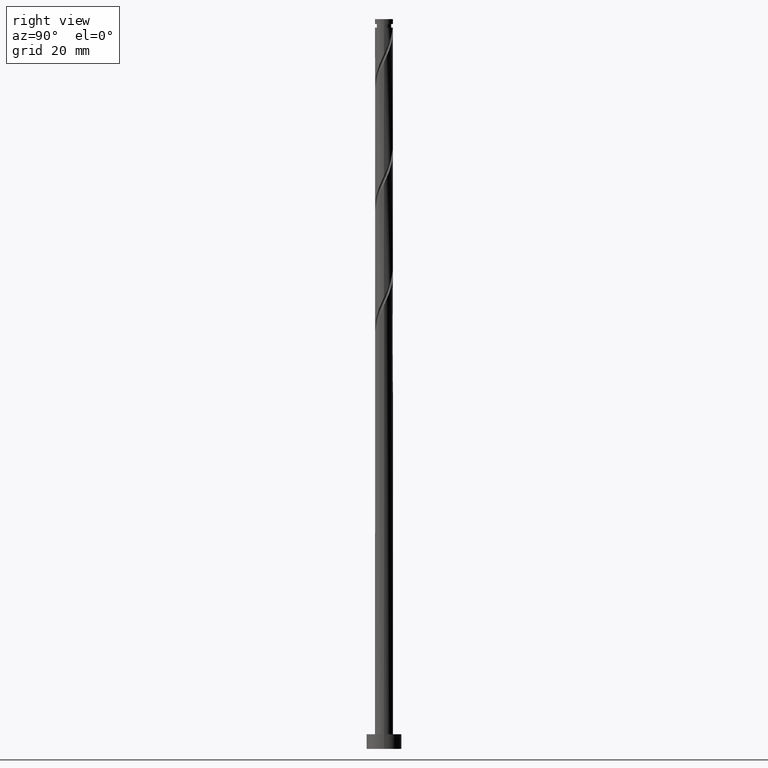
[diagram: clean part render]
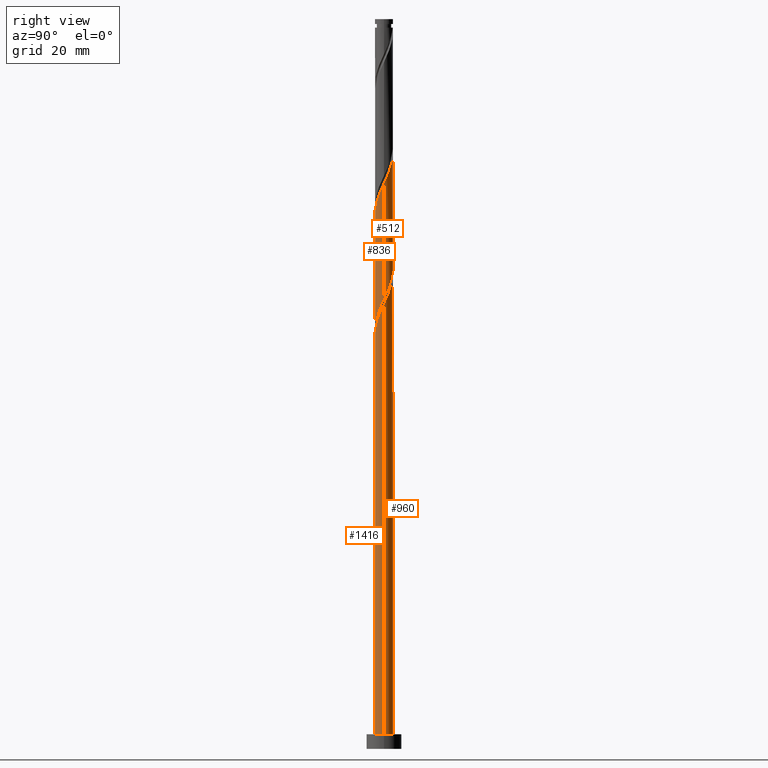
[diagram: same view with one multi-face feature highlighted, each face labeled with its STEP entity id]
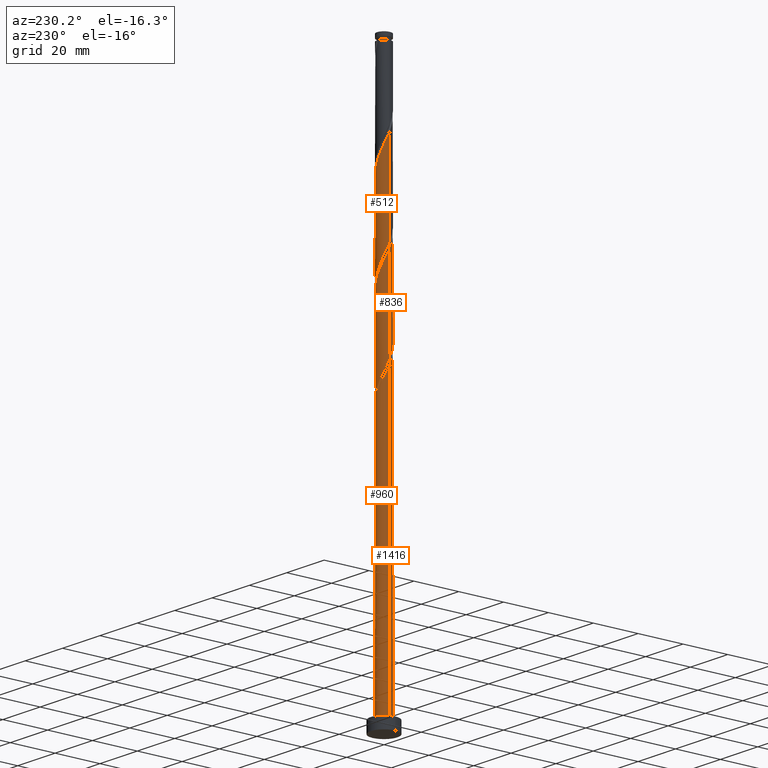
[diagram: same view with one multi-face feature highlighted, each face labeled with its STEP entity id]
A machine part, right view. The highlighted faces form ONE feature: a constant-radius fillet chain: 4 tangent blend faces with common blend radius 3.1 mm. The faces share edges in the B-rep.
A second angle (auxiliary view) of the same feature is appended — it is thin or edge-on in the first view.
Their STEP definitions:
[1] entity #512 (Cylinder):
#1 = CARTESIAN_POINT ( 'NONE',  ( -3.099999999999999645, -5.384137871983187194E-15, 175.5070562873882523 ) ) ;
#11 = CARTESIAN_POINT ( 'NONE',  ( 1.958059922082858728, 2.403331300826598405, 160.5573395397014735 ) ) ;
#12 = LINE ( 'NONE', #591, #320 ) ;
#35 = CARTESIAN_POINT ( 'NONE',  ( 3.099999999999999645, 4.112883096653824920E-15, 154.6737229540549379 ) ) ;
#100 = CARTESIAN_POINT ( 'NONE',  ( 2.621826352477054645, 1.654093884112052937, 197.4163138986758383 ) ) ;
#104 = CARTESIAN_POINT ( 'NONE',  ( -3.100000000000004974, -3.365086169989463498E-15, 214.5178792022711320 ) ) ;
#109 = CARTESIAN_POINT ( 'NONE',  ( 2.822669712321752122, 1.335746528729902183, 196.6150318473937659 ) ) ;
#119 = CARTESIAN_POINT ( 'NONE',  ( -2.998562407077148162, 0.8719556093840096223, 212.6406728730348163 ) ) ;
#124 = ORIENTED_EDGE ( 'NONE', *, *, #1775, .F. ) ;
#137 = CARTESIAN_POINT ( 'NONE',  ( 0.9857721960353355017, 2.963095724305272238, 162.9611856935476339 ) ) ;
#147 = CARTESIAN_POINT ( 'NONE',  ( -1.878597541326290532, 2.494504834951285055, 169.3714421038040712 ) ) ;
#157 = CARTESIAN_POINT ( 'NONE',  ( 2.850659702190533995, 1.218088363915759365, 157.3522113345732691 ) ) ;
#168 = CARTESIAN_POINT ( 'NONE',  ( -3.100000000000000089, 0.1232967040439751222, 175.2428853717553068 ) ) ;
#177 = CARTESIAN_POINT ( 'NONE',  ( 3.100000000000000533, 0.2518949594648384749, 155.2134236914032499 ) ) ;
#179 = DIRECTION ( 'NONE',  ( -0.000000000000000000, -0.000000000000000000, -1.000000000000000000 ) ) ;
#182 = ORIENTED_EDGE ( 'NONE', *, *, #1736, .F. ) ;
#242 = CARTESIAN_POINT ( 'NONE',  ( 1.552816185334434218, 2.683050855754219199, 200.6214421038040996 ) ) ;
#243 =( BOUNDED_CURVE ( )  B_SPLINE_CURVE ( 2, ( #1, #168, #562, #1536, #600, #307, #878, #1426, #286, #147, #859, #732, #1123, #1258, #568, #1698, #1574, #137, #1156, #1525, #11, #1147, #453, #1549, #157, #443, #296, #177, #35 ),
 .UNSPECIFIED., .F., .T. ) 
 B_SPLINE_CURVE_WITH_KNOTS ( ( 3, 2, 2, 2, 2, 2, 2, 2, 2, 2, 2, 2, 2, 2, 3 ),
 ( 0.6795271625973831053, 0.6826923076923077094, 0.6923076923076922906, 0.7019230769230768718, 0.7115384615384615641, 0.7211538461538461453, 0.7307692307692307265, 0.7403846153846154188, 0.7500000000000000000, 0.7596153846153845812, 0.7692307692307692735, 0.7788461538461538547, 0.7884615384615384359, 0.7980769230769231282, 0.8045271625973833274 ),
 .UNSPECIFIED. ) 
 CURVE ( )  GEOMETRIC_REPRESENTATION_ITEM ( )  RATIONAL_B_SPLINE_CURVE ( ( 0.9061636035682862911, 0.9069090390690748293, 0.9090909090909315982, 0.9024626128164350281, 0.9090909090909315982, 0.9024626128164350281, 0.9090909090909315982, 0.9024626128164350281, 0.9090909090909315982, 0.9024626128164350281, 0.9090909090909315982, 0.9024626128164350281, 0.9090909090909315982, 0.9024626128164350281, 0.9090909090909315982, 0.9024626128164350281, 0.9090909090909315982, 0.9024626128164350281, 0.9090909090909315982, 0.9024626128164350281, 0.9090909090909315982, 0.9024626128164350281, 0.9090909090909315982, 0.9024626128164350281, 0.9090909090909315982, 0.9024626128164350281, 0.9090909090909315982, 0.9046444828382915748, 0.9061636035682864021 ) ) 
 REPRESENTATION_ITEM ( '' )  );
#256 = CARTESIAN_POINT ( 'NONE',  ( -1.666242669196358106, 2.641082819833930007, 207.8329805653424671 ) ) ;
#286 = CARTESIAN_POINT ( 'NONE',  ( -2.149790266979321185, 2.233473037222740931, 170.1727241550860583 ) ) ;
#296 = CARTESIAN_POINT ( 'NONE',  ( 3.059332338079530089, 0.5004854095583954887, 155.7496472320091812 ) ) ;
#300 = CARTESIAN_POINT ( 'NONE',  ( 3.099999999999999645, 4.112883096653824131E-15, 154.6737229540549379 ) ) ;
#307 = CARTESIAN_POINT ( 'NONE',  ( -2.822669712321746793, 1.335746528729902183, 172.5765703089323040 ) ) ;
#320 = VECTOR ( 'NONE', #179, 1000.000000000000000 ) ;
#370 =( BOUNDED_CURVE ( )  B_SPLINE_CURVE ( 2, ( #1805, #1069, #823, #397, #940, #109, #100, #1227, #542, #666, #242, #949, #1361, #408, #377, #1514, #1794, #932, #675, #256, #1082, #799, #655, #1370, #1342, #119, #1235, #1210, #550 ),
 .UNSPECIFIED., .F., .T. ) 
 B_SPLINE_CURVE_WITH_KNOTS ( ( 3, 2, 2, 2, 2, 2, 2, 2, 2, 2, 2, 2, 2, 2, 3 ),
 ( 0.4295271625973836049, 0.4326923076923077094, 0.4423076923076922906, 0.4519230769230768718, 0.4615384615384615641, 0.4711538461538461453, 0.4807692307692307265, 0.4903846153846154188, 0.5000000000000000000, 0.5096153846153845812, 0.5192307692307691624, 0.5288461538461538547, 0.5384615384615384359, 0.5480769230769231282, 0.5545271625973833274 ),
 .UNSPECIFIED. ) 
 CURVE ( )  GEOMETRIC_REPRESENTATION_ITEM ( )  RATIONAL_B_SPLINE_CURVE ( ( 0.9061636035682940626, 0.9069090390690828229, 0.9090909090909391477, 0.9024626128164425776, 0.9090909090909391477, 0.9024626128164425776, 0.9090909090909391477, 0.9024626128164425776, 0.9090909090909391477, 0.9024626128164425776, 0.9090909090909391477, 0.9024626128164425776, 0.9090909090909391477, 0.9024626128164425776, 0.9090909090909391477, 0.9024626128164425776, 0.9090909090909391477, 0.9024626128164425776, 0.9090909090909391477, 0.9024626128164425776, 0.9090909090909391477, 0.9024626128164425776, 0.9090909090909391477, 0.9024626128164425776, 0.9090909090909391477, 0.9024626128164425776, 0.9090909090909391477, 0.9046444828382991243, 0.9061636035682938406 ) ) 
 REPRESENTATION_ITEM ( '' )  );
#377 = CARTESIAN_POINT ( 'NONE',  ( 0.1280745435953598022, 3.097353210611097918, 203.8265703089322187 ) ) ;
#392 = EDGE_CURVE ( 'NONE', #1037, #1555, #370, .T. ) ;
#397 = CARTESIAN_POINT ( 'NONE',  ( 3.060313128317948994, 0.6214230849569025716, 195.0124677448297348 ) ) ;
#408 = CARTESIAN_POINT ( 'NONE',  ( 0.5041613131675937165, 3.081802145527464010, 203.0252882576502316 ) ) ;
#443 = CARTESIAN_POINT ( 'NONE',  ( 2.998562407077144609, 0.8719556093840056255, 156.5509292832912820 ) ) ;
#453 = CARTESIAN_POINT ( 'NONE',  ( 2.476317086136641699, 1.864900450133392784, 158.9547754371374140 ) ) ;
#500 = EDGE_LOOP ( 'NONE', ( #1418, #1440, #124, #182 ) ) ;
#512 = ADVANCED_FACE ( 'NONE', ( #611 ), #1294, .T. ) ;
#542 = CARTESIAN_POINT ( 'NONE',  ( 2.149790266979326070, 2.233473037222744040, 199.0188780012399832 ) ) ;
#550 = CARTESIAN_POINT ( 'NONE',  ( -3.100000000000004974, -3.365086169989463498E-15, 214.5178792022711320 ) ) ;
#562 = CARTESIAN_POINT ( 'NONE',  ( -3.090207698699929395, 0.2462039376120597756, 174.9804164627784360 ) ) ;
#568 = CARTESIAN_POINT ( 'NONE',  ( -0.1280745435953560274, 3.097353210611092145, 165.3650318473938228 ) ) ;
#591 = CARTESIAN_POINT ( 'NONE',  ( 3.100000000000000089, 3.796405077356794918E-16, 250.0000000000000000 ) ) ;
#600 = CARTESIAN_POINT ( 'NONE',  ( -2.941491420319844785, 0.9785848068434026548, 173.3778523602142911 ) ) ;
#611 = FACE_OUTER_BOUND ( 'NONE', #500, .T. ) ;
#655 = CARTESIAN_POINT ( 'NONE',  ( -2.476317086136644807, 1.864900450133398113, 210.2368267191886559 ) ) ;
#658 = EDGE_CURVE ( 'NONE', #1037, #1275, #12, .T. ) ;
#666 = CARTESIAN_POINT ( 'NONE',  ( 1.878597541326295861, 2.494504834951285943, 199.8201600525219988 ) ) ;
#675 = CARTESIAN_POINT ( 'NONE',  ( -1.326007432615846193, 2.802089272069603343, 207.0316985140604515 ) ) ;
#732 = CARTESIAN_POINT ( 'NONE',  ( -1.227034829342569688, 2.871596876557147127, 167.7688780012399548 ) ) ;
#799 = CARTESIAN_POINT ( 'NONE',  ( -2.249877174969360460, 2.165579781819277905, 209.4355446679065835 ) ) ;
#823 = CARTESIAN_POINT ( 'NONE',  ( 3.090207698699935612, 0.2462039376120576106, 194.2111856935476339 ) ) ;
#858 = VERTEX_POINT ( 'NONE', #1200 ) ;
#859 = CARTESIAN_POINT ( 'NONE',  ( -1.552816185334429777, 2.683050855754215203, 168.5701600525220272 ) ) ;
#878 = CARTESIAN_POINT ( 'NONE',  ( -2.621826352477049316, 1.654093884112051160, 171.7752882576502031 ) ) ;
#932 = CARTESIAN_POINT ( 'NONE',  ( -0.9857721960353346136, 2.963095724305278011, 206.2304164627784075 ) ) ;
#940 = CARTESIAN_POINT ( 'NONE',  ( 2.941491420319851446, 0.9785848068434013225, 195.8137497961117504 ) ) ;
#949 = CARTESIAN_POINT ( 'NONE',  ( 1.227034829342573241, 2.871596876557151123, 201.4227241550860867 ) ) ;
#973 = LINE ( 'NONE', #1111, #1782 ) ;
#1037 = VERTEX_POINT ( 'NONE', #1359 ) ;
#1069 = CARTESIAN_POINT ( 'NONE',  ( 3.100000000000004086, 0.1232967040439928164, 193.9487167845707916 ) ) ;
#1082 = CARTESIAN_POINT ( 'NONE',  ( -1.958059922082859172, 2.403331300826604178, 208.6342626166245680 ) ) ;
#1111 = CARTESIAN_POINT ( 'NONE',  ( -3.100000000000000089, 0.000000000000000000, 250.0000000000000000 ) ) ;
#1123 = CARTESIAN_POINT ( 'NONE',  ( -0.8655980712550804812, 2.976699511042302237, 166.9675959499578823 ) ) ;
#1147 = CARTESIAN_POINT ( 'NONE',  ( 2.249877174969357796, 2.165579781819274352, 159.7560574884194295 ) ) ;
#1156 = CARTESIAN_POINT ( 'NONE',  ( 1.326007432615846859, 2.802089272069597570, 162.1599036422656184 ) ) ;
#1200 = CARTESIAN_POINT ( 'NONE',  ( -3.099999999999999645, -5.384137871983187194E-15, 175.5070562873882523 ) ) ;
#1210 = CARTESIAN_POINT ( 'NONE',  ( -3.100000000000004974, 0.2518949594648407508, 213.9781784649228200 ) ) ;
#1227 = CARTESIAN_POINT ( 'NONE',  ( 2.420982992632358055, 1.972441239494200138, 198.2175959499579108 ) ) ;
#1235 = CARTESIAN_POINT ( 'NONE',  ( -3.059332338079534530, 0.5004854095583979312, 213.4419549243168888 ) ) ;
#1258 = CARTESIAN_POINT ( 'NONE',  ( -0.5041613131675906079, 3.081802145527458681, 166.1663138986758099 ) ) ;
#1275 = VERTEX_POINT ( 'NONE', #300 ) ;
#1294 = CYLINDRICAL_SURFACE ( 'NONE', #1323, 3.100000000000000089 ) ;
#1323 = AXIS2_PLACEMENT_3D ( 'NONE', #1435, #1721, #1575 ) ;
#1342 = CARTESIAN_POINT ( 'NONE',  ( -2.850659702190538436, 1.218088363915763805, 211.8393908217527155 ) ) ;
#1359 = CARTESIAN_POINT ( 'NONE',  ( 3.100000000000005418, 1.600285423061656395E-15, 193.6845458689378177 ) ) ;
#1361 = CARTESIAN_POINT ( 'NONE',  ( 0.8655980712550847000, 2.976699511042306234, 202.2240062063681876 ) ) ;
#1370 = CARTESIAN_POINT ( 'NONE',  ( -2.702756997303928266, 1.564221118447517433, 211.0381087704706999 ) ) ;
#1418 = ORIENTED_EDGE ( 'NONE', *, *, #392, .F. ) ;
#1426 = CARTESIAN_POINT ( 'NONE',  ( -2.420982992632351838, 1.972441239494199250, 170.9740062063681592 ) ) ;
#1435 = CARTESIAN_POINT ( 'NONE',  ( 0.000000000000000000, 0.000000000000000000, 250.0000000000000000 ) ) ;
#1440 = ORIENTED_EDGE ( 'NONE', *, *, #658, .T. ) ;
#1514 = CARTESIAN_POINT ( 'NONE',  ( -0.2480122259768767212, 3.112904275694731826, 204.6278523602143196 ) ) ;
#1525 = CARTESIAN_POINT ( 'NONE',  ( 1.666242669196356996, 2.641082819833925122, 161.3586215909834891 ) ) ;
#1536 = CARTESIAN_POINT ( 'NONE',  ( -3.060313128317944109, 0.6214230849569030157, 174.1791344114963636 ) ) ;
#1549 = CARTESIAN_POINT ( 'NONE',  ( 2.702756997303925157, 1.564221118447511216, 158.1534933858553984 ) ) ;
#1555 = VERTEX_POINT ( 'NONE', #104 ) ;
#1574 = CARTESIAN_POINT ( 'NONE',  ( 0.6168922110061069164, 3.037999999999998924, 163.7624677448297064 ) ) ;
#1575 = DIRECTION ( 'NONE',  ( -1.000000000000000000, 0.000000000000000000, 0.000000000000000000 ) ) ;
#1685 = DIRECTION ( 'NONE',  ( -0.000000000000000000, -0.000000000000000000, -1.000000000000000000 ) ) ;
#1698 = CARTESIAN_POINT ( 'NONE',  ( 0.2480122259768786641, 3.112904275694726053, 164.5637497961117504 ) ) ;
#1721 = DIRECTION ( 'NONE',  ( -0.000000000000000000, -0.000000000000000000, -1.000000000000000000 ) ) ;
#1736 = EDGE_CURVE ( 'NONE', #1555, #858, #973, .T. ) ;
#1775 = EDGE_CURVE ( 'NONE', #858, #1275, #243, .T. ) ;
#1782 = VECTOR ( 'NONE', #1685, 1000.000000000000000 ) ;
#1794 = CARTESIAN_POINT ( 'NONE',  ( -0.6168922110061059172, 3.038000000000004697, 205.4291344114963920 ) ) ;
#1805 = CARTESIAN_POINT ( 'NONE',  ( 3.100000000000005418, 1.600285423061656395E-15, 193.6845458689378177 ) ) ;
[2] entity #836 (Cylinder):
#12 = LINE ( 'NONE', #591, #320 ) ;
#15 = CARTESIAN_POINT ( 'NONE',  ( -3.100000000000001865, -0.2518949594648305368, 134.3800903580698787 ) ) ;
#97 = CARTESIAN_POINT ( 'NONE',  ( 3.059332338079534974, -0.5004854095583980422, 192.6086215909835175 ) ) ;
#106 = CARTESIAN_POINT ( 'NONE',  ( 0.9857721960353340585, -2.963095724305278011, 185.3970831294450363 ) ) ;
#107 = CARTESIAN_POINT ( 'NONE',  ( -3.099999999999999201, 3.260394600256485574E-15, 133.8403896207215382 ) ) ;
#116 = CARTESIAN_POINT ( 'NONE',  ( -0.8655980712550831457, -2.976699511042307567, 181.3906728730347595 ) ) ;
#117 = CARTESIAN_POINT ( 'NONE',  ( 0.1280745435953551115, -3.097353210611092145, 144.5316985140604231 ) ) ;
#130 = CARTESIAN_POINT ( 'NONE',  ( 1.878597541326289866, -2.494504834951285499, 148.5381087704707568 ) ) ;
#140 = CARTESIAN_POINT ( 'NONE',  ( -1.552816185334434218, -2.683050855754219199, 179.7881087704707568 ) ) ;
#141 = CARTESIAN_POINT ( 'NONE',  ( 3.099999999999999645, -0.1232967040439853640, 154.4095520384219640 ) ) ;
#151 = CARTESIAN_POINT ( 'NONE',  ( -1.878597541326294751, -2.494504834951287275, 178.9868267191886559 ) ) ;
#159 = LINE ( 'NONE', #1015, #1506 ) ;
#179 = DIRECTION ( 'NONE',  ( -0.000000000000000000, -0.000000000000000000, -1.000000000000000000 ) ) ;
#208 = VERTEX_POINT ( 'NONE', #1407 ) ;
#247 = CARTESIAN_POINT ( 'NONE',  ( -0.1280745435953581091, -3.097353210611097918, 182.9932369755989328 ) ) ;
#248 = CARTESIAN_POINT ( 'NONE',  ( 3.060313128317944109, -0.6214230849569032378, 153.3458010781630492 ) ) ;
#271 = CARTESIAN_POINT ( 'NONE',  ( 3.099999999999999645, 4.112883096653824920E-15, 154.6737229540549379 ) ) ;
#300 = CARTESIAN_POINT ( 'NONE',  ( 3.099999999999999645, 4.112883096653824131E-15, 154.6737229540549379 ) ) ;
#311 = CARTESIAN_POINT ( 'NONE',  ( -3.100000000000005862, -0.1232967040439782586, 173.1153834512374203 ) ) ;
#320 = VECTOR ( 'NONE', #179, 1000.000000000000000 ) ;
#335 = CARTESIAN_POINT ( 'NONE',  ( 3.100000000000005418, 1.600285423061656395E-15, 193.6845458689378177 ) ) ;
#339 = CYLINDRICAL_SURFACE ( 'NONE', #374, 3.100000000000000089 ) ;
#374 = AXIS2_PLACEMENT_3D ( 'NONE', #1602, #1321, #1607 ) ;
#383 = CARTESIAN_POINT ( 'NONE',  ( 3.090207698699929395, -0.2462039376120615797, 154.1470831294450932 ) ) ;
#393 = CARTESIAN_POINT ( 'NONE',  ( 1.552816185334429333, -2.683050855754215647, 147.7368267191886844 ) ) ;
#415 = CARTESIAN_POINT ( 'NONE',  ( 2.476317086136644807, -1.864900450133398335, 189.4034933858553131 ) ) ;
#427 = CARTESIAN_POINT ( 'NONE',  ( -2.149790266979325626, -2.233473037222744484, 178.1855446679065551 ) ) ;
#428 = CARTESIAN_POINT ( 'NONE',  ( 2.149790266979321185, -2.233473037222740931, 149.3393908217527724 ) ) ;
#457 = EDGE_CURVE ( 'NONE', #208, #1037, #1804, .T. ) ;
#465 = CARTESIAN_POINT ( 'NONE',  ( -2.420982992632356723, -1.972441239494201470, 177.3842626166245680 ) ) ;
#473 = CARTESIAN_POINT ( 'NONE',  ( -3.099999999999999201, 3.260394600256485574E-15, 133.8403896207215382 ) ) ;
#525 = CARTESIAN_POINT ( 'NONE',  ( -1.958059922082856952, -2.403331300826598849, 139.7240062063682160 ) ) ;
#532 = CARTESIAN_POINT ( 'NONE',  ( -0.2480122259768793302, -3.112904275694726053, 143.7304164627784360 ) ) ;
#548 = CARTESIAN_POINT ( 'NONE',  ( 1.326007432615845305, -2.802089272069604231, 186.1983651807271087 ) ) ;
#549 = CARTESIAN_POINT ( 'NONE',  ( -2.702756997303925157, -1.564221118447513215, 137.3201600525220272 ) ) ;
#557 = CARTESIAN_POINT ( 'NONE',  ( -2.850659702190533551, -1.218088363915760253, 136.5188780012399548 ) ) ;
#591 = CARTESIAN_POINT ( 'NONE',  ( 3.100000000000000089, 3.796405077356794918E-16, 250.0000000000000000 ) ) ;
#652 = CARTESIAN_POINT ( 'NONE',  ( 2.249877174969360460, -2.165579781819279237, 188.6022113345732691 ) ) ;
#658 = EDGE_CURVE ( 'NONE', #1037, #1275, #12, .T. ) ;
#692 = CARTESIAN_POINT ( 'NONE',  ( -2.249877174969357796, -2.165579781819274352, 138.9227241550862004 ) ) ;
#701 = CARTESIAN_POINT ( 'NONE',  ( -2.621826352477054645, -1.654093884112052271, 176.5829805653425524 ) ) ;
#702 = CARTESIAN_POINT ( 'NONE',  ( -1.666242669196356552, -2.641082819833925566, 140.5252882576502031 ) ) ;
#734 = CARTESIAN_POINT ( 'NONE',  ( -2.822669712321751234, -1.335746528729903071, 175.7816985140604800 ) ) ;
#769 = FACE_OUTER_BOUND ( 'NONE', #1682, .T. ) ;
#802 =( BOUNDED_CURVE ( )  B_SPLINE_CURVE ( 2, ( #271, #141, #383, #248, #831, #1244, #1379, #1647, #428, #130, #393, #1348, #806, #1791, #117, #532, #1234, #1815, #1802, #702, #525, #692, #1823, #549, #557, #1783, #1068, #15, #473 ),
 .UNSPECIFIED., .F., .T. ) 
 B_SPLINE_CURVE_WITH_KNOTS ( ( 3, 2, 2, 2, 2, 2, 2, 2, 2, 2, 2, 2, 2, 2, 3 ),
 ( 0.8045271625973833274, 0.8076923076923077094, 0.8173076923076922906, 0.8269230769230768718, 0.8365384615384615641, 0.8461538461538461453, 0.8557692307692307265, 0.8653846153846154188, 0.8750000000000000000, 0.8846153846153845812, 0.8942307692307692735, 0.9038461538461538547, 0.9134615384615384359, 0.9230769230769231282, 0.9295271625973835494 ),
 .UNSPECIFIED. ) 
 CURVE ( )  GEOMETRIC_REPRESENTATION_ITEM ( )  RATIONAL_B_SPLINE_CURVE ( ( 0.9061636035682864021, 0.9069090390690750514, 0.9090909090909315982, 0.9024626128164350281, 0.9090909090909315982, 0.9024626128164350281, 0.9090909090909315982, 0.9024626128164350281, 0.9090909090909315982, 0.9024626128164350281, 0.9090909090909315982, 0.9024626128164350281, 0.9090909090909315982, 0.9024626128164350281, 0.9090909090909315982, 0.9024626128164350281, 0.9090909090909315982, 0.9024626128164350281, 0.9090909090909315982, 0.9024626128164350281, 0.9090909090909315982, 0.9024626128164350281, 0.9090909090909315982, 0.9024626128164350281, 0.9090909090909315982, 0.9024626128164350281, 0.9090909090909315982, 0.9046444828382913528, 0.9061636035682865131 ) ) 
 REPRESENTATION_ITEM ( '' )  );
#805 = CARTESIAN_POINT ( 'NONE',  ( 2.850659702190538436, -1.218088363915763805, 191.0060574884194580 ) ) ;
#806 = CARTESIAN_POINT ( 'NONE',  ( 0.8655980712550801481, -2.976699511042302237, 146.1342626166245964 ) ) ;
#831 = CARTESIAN_POINT ( 'NONE',  ( 2.941491420319844341, -0.9785848068434037650, 152.5445190268809483 ) ) ;
#836 = ADVANCED_FACE ( 'NONE', ( #769 ), #339, .T. ) ;
#929 = CARTESIAN_POINT ( 'NONE',  ( 1.666242669196356774, -2.641082819833930451, 186.9996472320091812 ) ) ;
#1015 = CARTESIAN_POINT ( 'NONE',  ( -3.100000000000000089, 0.000000000000000000, 250.0000000000000000 ) ) ;
#1037 = VERTEX_POINT ( 'NONE', #1359 ) ;
#1068 = CARTESIAN_POINT ( 'NONE',  ( -3.059332338079530089, -0.5004854095583951556, 134.9163138986758668 ) ) ;
#1119 = ORIENTED_EDGE ( 'NONE', *, *, #1289, .T. ) ;
#1152 = VERTEX_POINT ( 'NONE', #107 ) ;
#1171 = EDGE_CURVE ( 'NONE', #1275, #1152, #802, .T. ) ;
#1218 = CARTESIAN_POINT ( 'NONE',  ( 3.100000000000007194, -0.2518949594648298707, 193.1448451315895056 ) ) ;
#1232 = CARTESIAN_POINT ( 'NONE',  ( -0.5041613131675932724, -3.081802145527462677, 182.1919549243168603 ) ) ;
#1234 = CARTESIAN_POINT ( 'NONE',  ( -0.6168922110061065833, -3.037999999999998924, 142.9291344114963636 ) ) ;
#1244 = CARTESIAN_POINT ( 'NONE',  ( 2.822669712321746793, -1.335746528729901739, 151.7432369755988759 ) ) ;
#1275 = VERTEX_POINT ( 'NONE', #300 ) ;
#1289 = EDGE_CURVE ( 'NONE', #208, #1152, #159, .T. ) ;
#1321 = DIRECTION ( 'NONE',  ( -0.000000000000000000, -0.000000000000000000, -1.000000000000000000 ) ) ;
#1339 = CARTESIAN_POINT ( 'NONE',  ( 2.702756997303928266, -1.564221118447518100, 190.2047754371373571 ) ) ;
#1347 = CARTESIAN_POINT ( 'NONE',  ( 2.998562407077147274, -0.8719556093840112876, 191.8073395397014451 ) ) ;
#1348 = CARTESIAN_POINT ( 'NONE',  ( 1.227034829342569244, -2.871596876557147571, 146.9355446679066404 ) ) ;
#1358 = CARTESIAN_POINT ( 'NONE',  ( 0.6168922110061061392, -3.038000000000004697, 184.5958010781630492 ) ) ;
#1359 = CARTESIAN_POINT ( 'NONE',  ( 3.100000000000005418, 1.600285423061656395E-15, 193.6845458689378177 ) ) ;
#1379 = CARTESIAN_POINT ( 'NONE',  ( 2.621826352477048871, -1.654093884112051382, 150.9419549243168888 ) ) ;
#1407 = CARTESIAN_POINT ( 'NONE',  ( -3.100000000000005418, 6.715216401445643760E-15, 172.8512125356044749 ) ) ;
#1413 = ORIENTED_EDGE ( 'NONE', *, *, #658, .F. ) ;
#1490 = CARTESIAN_POINT ( 'NONE',  ( -1.227034829342573019, -2.871596876557151123, 180.5893908217527439 ) ) ;
#1506 = VECTOR ( 'NONE', #1563, 1000.000000000000000 ) ;
#1550 = CARTESIAN_POINT ( 'NONE',  ( -3.100000000000005418, 6.715216401445643760E-15, 172.8512125356044749 ) ) ;
#1563 = DIRECTION ( 'NONE',  ( -0.000000000000000000, -0.000000000000000000, -1.000000000000000000 ) ) ;
#1571 = ORIENTED_EDGE ( 'NONE', *, *, #457, .F. ) ;
#1602 = CARTESIAN_POINT ( 'NONE',  ( 0.000000000000000000, 0.000000000000000000, 250.0000000000000000 ) ) ;
#1607 = DIRECTION ( 'NONE',  ( -1.000000000000000000, 0.000000000000000000, 0.000000000000000000 ) ) ;
#1626 = CARTESIAN_POINT ( 'NONE',  ( 0.2480122259768770543, -3.112904275694731826, 183.7945190268809483 ) ) ;
#1647 = CARTESIAN_POINT ( 'NONE',  ( 2.420982992632351394, -1.972441239494201248, 150.1406728730348163 ) ) ;
#1665 = CARTESIAN_POINT ( 'NONE',  ( 1.958059922082859172, -2.403331300826604178, 187.8009292832912536 ) ) ;
#1682 = EDGE_LOOP ( 'NONE', ( #1413, #1571, #1119, #1832 ) ) ;
#1688 = CARTESIAN_POINT ( 'NONE',  ( -3.060313128317948994, -0.6214230849569027937, 174.1791344114963920 ) ) ;
#1713 = CARTESIAN_POINT ( 'NONE',  ( -2.941491420319850114, -0.9785848068434026548, 174.9804164627784075 ) ) ;
#1783 = CARTESIAN_POINT ( 'NONE',  ( -2.998562407077144165, -0.8719556093840072908, 135.7175959499579392 ) ) ;
#1791 = CARTESIAN_POINT ( 'NONE',  ( 0.5041613131675897197, -3.081802145527458237, 145.3329805653424955 ) ) ;
#1802 = CARTESIAN_POINT ( 'NONE',  ( -1.326007432615845527, -2.802089272069598014, 141.3265703089322471 ) ) ;
#1804 =( BOUNDED_CURVE ( )  B_SPLINE_CURVE ( 2, ( #1550, #311, #1821, #1688, #1713, #734, #701, #465, #427, #151, #140, #1490, #116, #1232, #247, #1626, #1358, #106, #548, #929, #1665, #652, #415, #1339, #805, #1347, #97, #1218, #335 ),
 .UNSPECIFIED., .F., .T. ) 
 B_SPLINE_CURVE_WITH_KNOTS ( ( 3, 2, 2, 2, 2, 2, 2, 2, 2, 2, 2, 2, 2, 2, 3 ),
 ( 0.3045271625973832164, 0.3076923076923077094, 0.3173076923076922906, 0.3269230769230768718, 0.3365384615384615641, 0.3461538461538461453, 0.3557692307692307265, 0.3653846153846154188, 0.3750000000000000000, 0.3846153846153845812, 0.3942307692307692735, 0.4038461538461538547, 0.4134615384615384359, 0.4230769230769231282, 0.4295271625973836049 ),
 .UNSPECIFIED. ) 
 CURVE ( )  GEOMETRIC_REPRESENTATION_ITEM ( )  RATIONAL_B_SPLINE_CURVE ( ( 0.9061636035682938406, 0.9069090390690824899, 0.9090909090909391477, 0.9024626128164425776, 0.9090909090909391477, 0.9024626128164425776, 0.9090909090909391477, 0.9024626128164425776, 0.9090909090909391477, 0.9024626128164425776, 0.9090909090909391477, 0.9024626128164425776, 0.9090909090909391477, 0.9024626128164425776, 0.9090909090909391477, 0.9024626128164425776, 0.9090909090909391477, 0.9024626128164425776, 0.9090909090909391477, 0.9024626128164425776, 0.9090909090909391477, 0.9024626128164425776, 0.9090909090909391477, 0.9024626128164425776, 0.9090909090909391477, 0.9024626128164425776, 0.9090909090909391477, 0.9046444828382990133, 0.9061636035682940626 ) ) 
 REPRESENTATION_ITEM ( '' )  );
#1815 = CARTESIAN_POINT ( 'NONE',  ( -0.9857721960353348356, -2.963095724305272238, 142.1278523602142911 ) ) ;
#1821 = CARTESIAN_POINT ( 'NONE',  ( -3.090207698699935168, -0.2462039376120586376, 173.3778523602142911 ) ) ;
#1823 = CARTESIAN_POINT ( 'NONE',  ( -2.476317086136642143, -1.864900450133393450, 138.1214421038040143 ) ) ;
#1832 = ORIENTED_EDGE ( 'NONE', *, *, #1171, .F. ) ;
[3] entity #960 (Cylinder):
#27 = CARTESIAN_POINT ( 'NONE',  ( -3.100000000000004974, -1.929316070793959588E-15, 131.1845458689377892 ) ) ;
#39 = EDGE_CURVE ( 'NONE', #1017, #961, #303, .T. ) ;
#59 = EDGE_CURVE ( 'NONE', #1203, #961, #1173, .T. ) ;
#62 = CARTESIAN_POINT ( 'NONE',  ( 0.000000000000000000, 0.000000000000000000, 5.000000000000000000 ) ) ;
#63 = CARTESIAN_POINT ( 'NONE',  ( -2.249877174969360460, 2.165579781819277905, 167.7688780012399832 ) ) ;
#74 = CARTESIAN_POINT ( 'NONE',  ( 2.621826352477054645, 1.654093884112052937, 155.7496472320092096 ) ) ;
#77 = CARTESIAN_POINT ( 'NONE',  ( 0.000000000000000000, 0.000000000000000000, 122.0958010781630350 ) ) ;
#79 = ORIENTED_EDGE ( 'NONE', *, *, #1289, .F. ) ;
#89 = CARTESIAN_POINT ( 'NONE',  ( -1.666242669196358106, 2.641082819833930007, 166.1663138986758099 ) ) ;
#98 = CYLINDRICAL_SURFACE ( 'NONE', #133, 3.100000000000000089 ) ;
#107 = CARTESIAN_POINT ( 'NONE',  ( -3.099999999999999201, 3.260394600256485574E-15, 133.8403896207215382 ) ) ;
#132 = ORIENTED_EDGE ( 'NONE', *, *, #59, .F. ) ;
#133 = AXIS2_PLACEMENT_3D ( 'NONE', #673, #1500, #681 ) ;
#159 = LINE ( 'NONE', #1015, #1506 ) ;
#163 = ORIENTED_EDGE ( 'NONE', *, *, #1524, .F. ) ;
#166 =( BOUNDED_CURVE ( )  B_SPLINE_CURVE ( 2, ( #777, #905, #1486, #221, #1312, #367, #74, #1305, #1619, #1473, #1750, #1460, #351, #241, #629, #644, #493, #1036, #209, #89, #921, #63, #1183, #1058, #518, #502, #1192, #1766, #510 ),
 .UNSPECIFIED., .F., .T. ) 
 B_SPLINE_CURVE_WITH_KNOTS ( ( 3, 2, 2, 2, 2, 2, 2, 2, 2, 2, 2, 2, 2, 2, 3 ),
 ( 0.1795271625973834939, 0.1826923076923077094, 0.1923076923076922906, 0.2019230769230768718, 0.2115384615384615641, 0.2211538461538461453, 0.2307692307692307265, 0.2403846153846154188, 0.2500000000000000000, 0.2596153846153845812, 0.2692307692307692735, 0.2788461538461538547, 0.2884615384615384359, 0.2980769230769231282, 0.3045271625973832164 ),
 .UNSPECIFIED. ) 
 CURVE ( )  GEOMETRIC_REPRESENTATION_ITEM ( )  RATIONAL_B_SPLINE_CURVE ( ( 0.9061636035682940626, 0.9069090390690828229, 0.9090909090909391477, 0.9024626128164425776, 0.9090909090909391477, 0.9024626128164425776, 0.9090909090909391477, 0.9024626128164425776, 0.9090909090909391477, 0.9024626128164425776, 0.9090909090909391477, 0.9024626128164425776, 0.9090909090909391477, 0.9024626128164425776, 0.9090909090909391477, 0.9024626128164425776, 0.9090909090909391477, 0.9024626128164425776, 0.9090909090909391477, 0.9024626128164425776, 0.9090909090909391477, 0.9024626128164425776, 0.9090909090909391477, 0.9024626128164425776, 0.9090909090909391477, 0.9024626128164425776, 0.9090909090909391477, 0.9046444828382992354, 0.9061636035682938406 ) ) 
 REPRESENTATION_ITEM ( '' )  );
#184 =( BOUNDED_CURVE ( )  B_SPLINE_CURVE ( 2, ( #463, #708, #846, #1135, #589, #1708, #996, #1405, #983, #1392, #1014, #1287, #1419 ),
 .UNSPECIFIED., .F., .T. ) 
 B_SPLINE_CURVE_WITH_KNOTS ( ( 3, 2, 2, 2, 2, 2, 3 ),
 ( 0.000000000000000000, 0.009615384615384581224, 0.01923076923076927347, 0.02884615384615385816, 0.03846153846153843592, 0.04807692307692312816, 0.05452716259738350085 ),
 .UNSPECIFIED. ) 
 CURVE ( )  GEOMETRIC_REPRESENTATION_ITEM ( )  RATIONAL_B_SPLINE_CURVE ( ( 0.9090909090909391477, 0.9024626128164425776, 0.9090909090909391477, 0.9024626128164425776, 0.9090909090909391477, 0.9024626128164425776, 0.9090909090909391477, 0.9024626128164425776, 0.9090909090909391477, 0.9024626128164425776, 0.9090909090909391477, 0.9046444828382990133, 0.9061636035682940626 ) ) 
 REPRESENTATION_ITEM ( '' )  );
#197 = CIRCLE ( 'NONE', #1697, 3.100000000000000089 ) ;
#208 = VERTEX_POINT ( 'NONE', #1407 ) ;
#209 = CARTESIAN_POINT ( 'NONE',  ( -1.326007432615846193, 2.802089272069603343, 165.3650318473937944 ) ) ;
#221 = CARTESIAN_POINT ( 'NONE',  ( 3.060313128317948994, 0.6214230849569025716, 153.3458010781630207 ) ) ;
#241 = CARTESIAN_POINT ( 'NONE',  ( 0.5041613131675937165, 3.081802145527464010, 161.3586215909835175 ) ) ;
#303 = CIRCLE ( 'NONE', #1472, 3.100000000000000089 ) ;
#351 = CARTESIAN_POINT ( 'NONE',  ( 0.8655980712550847000, 2.976699511042306234, 160.5573395397014735 ) ) ;
#365 = DIRECTION ( 'NONE',  ( 1.000000000000000000, 0.000000000000000000, 0.000000000000000000 ) ) ;
#367 = CARTESIAN_POINT ( 'NONE',  ( 2.822669712321752122, 1.335746528729902183, 154.9483651807271087 ) ) ;
#372 = CARTESIAN_POINT ( 'NONE',  ( -2.149790266979321185, 2.233473037222740931, 128.5060574884194295 ) ) ;
#419 = CARTESIAN_POINT ( 'NONE',  ( 0.6168922110061068054, 3.037999999999998924, 122.0958010781630065 ) ) ;
#433 = VERTEX_POINT ( 'NONE', #419 ) ;
#463 = CARTESIAN_POINT ( 'NONE',  ( -0.6168922110061056951, 3.038000000000004697, 122.0958010781630065 ) ) ;
#467 = ORIENTED_EDGE ( 'NONE', *, *, #39, .T. ) ;
#481 =( BOUNDED_CURVE ( )  B_SPLINE_CURVE ( 2, ( #499, #1328, #775, #1045, #1033, #508, #761, #622, #372, #1319, #928, #1484, #1172, #1748, #785, #752, #1308 ),
 .UNSPECIFIED., .F., .T. ) 
 B_SPLINE_CURVE_WITH_KNOTS ( ( 3, 2, 2, 2, 2, 2, 2, 2, 3 ),
 ( 0.9295271625973835494, 0.9326923076923077094, 0.9423076923076922906, 0.9519230769230768718, 0.9615384615384615641, 0.9711538461538461453, 0.9807692307692307265, 0.9903846153846154188, 1.000000000000000000 ),
 .UNSPECIFIED. ) 
 CURVE ( )  GEOMETRIC_REPRESENTATION_ITEM ( )  RATIONAL_B_SPLINE_CURVE ( ( 0.9061636035682865131, 0.9069090390690751624, 0.9090909090909315982, 0.9024626128164350281, 0.9090909090909315982, 0.9024626128164350281, 0.9090909090909315982, 0.9024626128164350281, 0.9090909090909315982, 0.9024626128164350281, 0.9090909090909315982, 0.9024626128164350281, 0.9090909090909315982, 0.9024626128164350281, 0.9090909090909315982, 0.9024626128164350281, 0.9090909090909315982 ) ) 
 REPRESENTATION_ITEM ( '' )  );
#493 = CARTESIAN_POINT ( 'NONE',  ( -0.6168922110061059172, 3.038000000000004697, 163.7624677448296779 ) ) ;
#499 = CARTESIAN_POINT ( 'NONE',  ( -3.099999999999999201, 3.260394600256485574E-15, 133.8403896207215382 ) ) ;
#502 = CARTESIAN_POINT ( 'NONE',  ( -2.998562407077148162, 0.8719556093840096223, 170.9740062063681592 ) ) ;
#508 = CARTESIAN_POINT ( 'NONE',  ( -2.822669712321746793, 1.335746528729902183, 130.9099036422655900 ) ) ;
#510 = CARTESIAN_POINT ( 'NONE',  ( -3.100000000000005418, 6.715216401445643760E-15, 172.8512125356044749 ) ) ;
#518 = CARTESIAN_POINT ( 'NONE',  ( -2.850659702190538436, 1.218088363915763805, 170.1727241550860867 ) ) ;
#587 = VERTEX_POINT ( 'NONE', #1658 ) ;
#589 = CARTESIAN_POINT ( 'NONE',  ( -1.958059922082859172, 2.403331300826604178, 125.3009292832912251 ) ) ;
#622 = CARTESIAN_POINT ( 'NONE',  ( -2.420982992632351838, 1.972441239494199250, 129.3073395397015020 ) ) ;
#627 = DIRECTION ( 'NONE',  ( 0.000000000000000000, 0.000000000000000000, 1.000000000000000000 ) ) ;
#629 = CARTESIAN_POINT ( 'NONE',  ( 0.1280745435953598022, 3.097353210611097918, 162.1599036422655900 ) ) ;
#642 = DIRECTION ( 'NONE',  ( 0.000000000000000000, -0.000000000000000000, -1.000000000000000000 ) ) ;
#644 = CARTESIAN_POINT ( 'NONE',  ( -0.2480122259768767212, 3.112904275694731826, 162.9611856935475771 ) ) ;
#648 = VERTEX_POINT ( 'NONE', #1497 ) ;
#673 = CARTESIAN_POINT ( 'NONE',  ( 0.000000000000000000, 0.000000000000000000, 250.0000000000000000 ) ) ;
#681 = DIRECTION ( 'NONE',  ( -1.000000000000000000, 0.000000000000000000, 0.000000000000000000 ) ) ;
#708 = CARTESIAN_POINT ( 'NONE',  ( -0.9857721960353346136, 2.963095724305278011, 122.8970831294451074 ) ) ;
#721 = CARTESIAN_POINT ( 'NONE',  ( 3.100000000000000089, 3.796405077356794918E-16, 250.0000000000000000 ) ) ;
#752 = CARTESIAN_POINT ( 'NONE',  ( 0.2480122259768786641, 3.112904275694726053, 122.8970831294450790 ) ) ;
#761 = CARTESIAN_POINT ( 'NONE',  ( -2.621826352477049316, 1.654093884112051160, 130.1086215909835460 ) ) ;
#775 = CARTESIAN_POINT ( 'NONE',  ( -3.090207698699929395, 0.2462039376120597756, 133.3137497961117504 ) ) ;
#777 = CARTESIAN_POINT ( 'NONE',  ( 3.100000000000005418, 1.600285423061656395E-15, 152.0178792022711889 ) ) ;
#785 = CARTESIAN_POINT ( 'NONE',  ( -0.1280745435953560274, 3.097353210611092145, 123.6983651807271514 ) ) ;
#796 = CARTESIAN_POINT ( 'NONE',  ( -3.100000000000000089, 0.000000000000000000, 250.0000000000000000 ) ) ;
#844 = ORIENTED_EDGE ( 'NONE', *, *, #1814, .T. ) ;
#846 = CARTESIAN_POINT ( 'NONE',  ( -1.326007432615846193, 2.802089272069603343, 123.6983651807271514 ) ) ;
#866 = EDGE_CURVE ( 'NONE', #587, #208, #166, .T. ) ;
#905 = CARTESIAN_POINT ( 'NONE',  ( 3.100000000000004086, 0.1232967040439884865, 152.2820501179041059 ) ) ;
#921 = CARTESIAN_POINT ( 'NONE',  ( -1.958059922082859172, 2.403331300826604178, 166.9675959499579392 ) ) ;
#928 = CARTESIAN_POINT ( 'NONE',  ( -1.552816185334429777, 2.683050855754215203, 126.9034933858553558 ) ) ;
#960 = ADVANCED_FACE ( 'NONE', ( #1081 ), #98, .T. ) ;
#961 = VERTEX_POINT ( 'NONE', #1656 ) ;
#982 = EDGE_LOOP ( 'NONE', ( #1513, #844, #467, #132, #1705, #1110, #163, #79 ) ) ;
#983 = CARTESIAN_POINT ( 'NONE',  ( -2.850659702190538436, 1.218088363915763805, 128.5060574884194580 ) ) ;
#996 = CARTESIAN_POINT ( 'NONE',  ( -2.476317086136644807, 1.864900450133398113, 126.9034933858553273 ) ) ;
#1014 = CARTESIAN_POINT ( 'NONE',  ( -3.059332338079534530, 0.5004854095583979312, 130.1086215909835175 ) ) ;
#1015 = CARTESIAN_POINT ( 'NONE',  ( -3.100000000000000089, 0.000000000000000000, 250.0000000000000000 ) ) ;
#1017 = VERTEX_POINT ( 'NONE', #1092 ) ;
#1033 = CARTESIAN_POINT ( 'NONE',  ( -2.941491420319844785, 0.9785848068434026548, 131.7111856935476339 ) ) ;
#1036 = CARTESIAN_POINT ( 'NONE',  ( -0.9857721960353346136, 2.963095724305278011, 164.5637497961116935 ) ) ;
#1045 = CARTESIAN_POINT ( 'NONE',  ( -3.060313128317944109, 0.6214230849569030157, 132.5124677448297064 ) ) ;
#1058 = CARTESIAN_POINT ( 'NONE',  ( -2.702756997303928266, 1.564221118447517433, 169.3714421038040996 ) ) ;
#1081 = FACE_OUTER_BOUND ( 'NONE', #982, .T. ) ;
#1092 = CARTESIAN_POINT ( 'NONE',  ( 3.100000000000000089, 3.796405077356794918E-16, 5.000000000000000000 ) ) ;
#1110 = ORIENTED_EDGE ( 'NONE', *, *, #1474, .T. ) ;
#1135 = CARTESIAN_POINT ( 'NONE',  ( -1.666242669196358106, 2.641082819833930007, 124.4996472320091954 ) ) ;
#1152 = VERTEX_POINT ( 'NONE', #107 ) ;
#1172 = CARTESIAN_POINT ( 'NONE',  ( -0.8655980712550804812, 2.976699511042302237, 125.3009292832912536 ) ) ;
#1173 = LINE ( 'NONE', #796, #1617 ) ;
#1183 = CARTESIAN_POINT ( 'NONE',  ( -2.476317086136644807, 1.864900450133398113, 168.5701600525220272 ) ) ;
#1192 = CARTESIAN_POINT ( 'NONE',  ( -3.059332338079534530, 0.5004854095583979312, 171.7752882576502600 ) ) ;
#1203 = VERTEX_POINT ( 'NONE', #27 ) ;
#1267 = DIRECTION ( 'NONE',  ( -0.000000000000000000, -0.000000000000000000, -1.000000000000000000 ) ) ;
#1287 = CARTESIAN_POINT ( 'NONE',  ( -3.100000000000006750, 0.2518949594648340895, 130.6448451315895056 ) ) ;
#1289 = EDGE_CURVE ( 'NONE', #208, #1152, #159, .T. ) ;
#1305 = CARTESIAN_POINT ( 'NONE',  ( 2.420982992632358055, 1.972441239494200138, 156.5509292832912251 ) ) ;
#1308 = CARTESIAN_POINT ( 'NONE',  ( 0.6168922110061069164, 3.037999999999998924, 122.0958010781630065 ) ) ;
#1312 = CARTESIAN_POINT ( 'NONE',  ( 2.941491420319851446, 0.9785848068434013225, 154.1470831294450647 ) ) ;
#1319 = CARTESIAN_POINT ( 'NONE',  ( -1.878597541326290532, 2.494504834951285055, 127.7047754371373856 ) ) ;
#1328 = CARTESIAN_POINT ( 'NONE',  ( -3.099999999999998312, 0.1232967040439924139, 133.5762187050885927 ) ) ;
#1338 = DIRECTION ( 'NONE',  ( -0.000000000000000000, -0.000000000000000000, -1.000000000000000000 ) ) ;
#1392 = CARTESIAN_POINT ( 'NONE',  ( -2.998562407077148162, 0.8719556093840096223, 129.3073395397014735 ) ) ;
#1405 = CARTESIAN_POINT ( 'NONE',  ( -2.702756997303928266, 1.564221118447517433, 127.7047754371373998 ) ) ;
#1407 = CARTESIAN_POINT ( 'NONE',  ( -3.100000000000005418, 6.715216401445643760E-15, 172.8512125356044749 ) ) ;
#1419 = CARTESIAN_POINT ( 'NONE',  ( -3.100000000000004974, -1.929316070793959588E-15, 131.1845458689377892 ) ) ;
#1448 = DIRECTION ( 'NONE',  ( -1.000000000000000000, 0.000000000000000000, 0.000000000000000000 ) ) ;
#1460 = CARTESIAN_POINT ( 'NONE',  ( 1.227034829342573241, 2.871596876557151123, 159.7560574884194011 ) ) ;
#1472 = AXIS2_PLACEMENT_3D ( 'NONE', #62, #627, #365 ) ;
#1473 = CARTESIAN_POINT ( 'NONE',  ( 1.878597541326295861, 2.494504834951285943, 158.1534933858553131 ) ) ;
#1474 = EDGE_CURVE ( 'NONE', #648, #433, #197, .T. ) ;
#1484 = CARTESIAN_POINT ( 'NONE',  ( -1.227034829342569688, 2.871596876557147127, 126.1022113345733118 ) ) ;
#1486 = CARTESIAN_POINT ( 'NONE',  ( 3.090207698699935612, 0.2462039376120576106, 152.5445190268809768 ) ) ;
#1497 = CARTESIAN_POINT ( 'NONE',  ( -0.6168922110061056951, 3.038000000000004253, 122.0958010781630065 ) ) ;
#1500 = DIRECTION ( 'NONE',  ( -0.000000000000000000, -0.000000000000000000, -1.000000000000000000 ) ) ;
#1506 = VECTOR ( 'NONE', #1563, 1000.000000000000000 ) ;
#1513 = ORIENTED_EDGE ( 'NONE', *, *, #866, .F. ) ;
#1524 = EDGE_CURVE ( 'NONE', #1152, #433, #481, .T. ) ;
#1563 = DIRECTION ( 'NONE',  ( -0.000000000000000000, -0.000000000000000000, -1.000000000000000000 ) ) ;
#1598 = VECTOR ( 'NONE', #1267, 1000.000000000000000 ) ;
#1617 = VECTOR ( 'NONE', #1338, 1000.000000000000000 ) ;
#1619 = CARTESIAN_POINT ( 'NONE',  ( 2.149790266979326070, 2.233473037222744040, 157.3522113345732691 ) ) ;
#1656 = CARTESIAN_POINT ( 'NONE',  ( -3.100000000000000089, 0.000000000000000000, 5.000000000000000000 ) ) ;
#1658 = CARTESIAN_POINT ( 'NONE',  ( 3.100000000000005418, 1.600285423061656395E-15, 152.0178792022711605 ) ) ;
#1697 = AXIS2_PLACEMENT_3D ( 'NONE', #77, #642, #1448 ) ;
#1705 = ORIENTED_EDGE ( 'NONE', *, *, #1754, .F. ) ;
#1708 = CARTESIAN_POINT ( 'NONE',  ( -2.249877174969360460, 2.165579781819277905, 126.1022113345732691 ) ) ;
#1732 = LINE ( 'NONE', #721, #1598 ) ;
#1748 = CARTESIAN_POINT ( 'NONE',  ( -0.5041613131675906079, 3.081802145527458681, 124.4996472320092096 ) ) ;
#1750 = CARTESIAN_POINT ( 'NONE',  ( 1.552816185334434218, 2.683050855754219199, 158.9547754371374424 ) ) ;
#1754 = EDGE_CURVE ( 'NONE', #648, #1203, #184, .T. ) ;
#1766 = CARTESIAN_POINT ( 'NONE',  ( -3.100000000000004086, 0.2518949594648450807, 172.3115117982561912 ) ) ;
#1814 = EDGE_CURVE ( 'NONE', #587, #1017, #1732, .T. ) ;
[4] entity #1416 (Cylinder):
#22 = CARTESIAN_POINT ( 'NONE',  ( 3.100000000000005418, 1.600285423061656395E-15, 152.0178792022711889 ) ) ;
#27 = CARTESIAN_POINT ( 'NONE',  ( -3.100000000000004974, -1.929316070793959588E-15, 131.1845458689377892 ) ) ;
#36 = CARTESIAN_POINT ( 'NONE',  ( -0.5041613131675932724, -3.081802145527462677, 140.5252882576501747 ) ) ;
#45 = CARTESIAN_POINT ( 'NONE',  ( -2.149790266979325626, -2.233473037222744484, 136.5188780012399263 ) ) ;
#59 = EDGE_CURVE ( 'NONE', #1203, #961, #1173, .T. ) ;
#73 = AXIS2_PLACEMENT_3D ( 'NONE', #1190, #893, #1458 ) ;
#118 = ORIENTED_EDGE ( 'NONE', *, *, #59, .T. ) ;
#169 = CARTESIAN_POINT ( 'NONE',  ( 3.059332338079534974, -0.5004854095583980422, 150.9419549243168603 ) ) ;
#178 = CARTESIAN_POINT ( 'NONE',  ( -1.552816185334434218, -2.683050855754219199, 138.1214421038040996 ) ) ;
#237 = CARTESIAN_POINT ( 'NONE',  ( 0.000000000000000000, 0.000000000000000000, 5.000000000000000000 ) ) ;
#299 = CARTESIAN_POINT ( 'NONE',  ( 2.476317086136644807, -1.864900450133398335, 147.7368267191885991 ) ) ;
#322 = CARTESIAN_POINT ( 'NONE',  ( -2.420982992632356723, -1.972441239494201470, 135.7175959499578823 ) ) ;
#337 = CYLINDRICAL_SURFACE ( 'NONE', #73, 3.100000000000000089 ) ;
#371 = CIRCLE ( 'NONE', #468, 3.100000000000000089 ) ;
#416 = CARTESIAN_POINT ( 'NONE',  ( 2.998562407077147274, -0.8719556093840112876, 150.1406728730348163 ) ) ;
#422 =( BOUNDED_CURVE ( )  B_SPLINE_CURVE ( 2, ( #975, #1538, #1406, #710, #742, #1427, #1733, #322, #45, #590, #178, #1148, #1583, #36, #885, #602, #1447, #1599, #1204, #967, #520, #1528, #299, #1253, #1410, #416, #169, #1699, #22 ),
 .UNSPECIFIED., .F., .T. ) 
 B_SPLINE_CURVE_WITH_KNOTS ( ( 3, 2, 2, 2, 2, 2, 2, 2, 2, 2, 2, 2, 2, 2, 3 ),
 ( 0.05452716259738350085, 0.05769230769230770939, 0.06730769230769229061, 0.07692307692307687184, 0.08653846153846156408, 0.09615384615384614531, 0.1057692307692307265, 0.1153846153846154188, 0.1250000000000000000, 0.1346153846153845812, 0.1442307692307692735, 0.1538461538461538547, 0.1634615384615384359, 0.1730769230769231282, 0.1795271625973834939 ),
 .UNSPECIFIED. ) 
 CURVE ( )  GEOMETRIC_REPRESENTATION_ITEM ( )  RATIONAL_B_SPLINE_CURVE ( ( 0.9061636035682940626, 0.9069090390690827119, 0.9090909090909391477, 0.9024626128164425776, 0.9090909090909391477, 0.9024626128164425776, 0.9090909090909391477, 0.9024626128164425776, 0.9090909090909391477, 0.9024626128164425776, 0.9090909090909391477, 0.9024626128164425776, 0.9090909090909391477, 0.9024626128164425776, 0.9090909090909391477, 0.9024626128164425776, 0.9090909090909391477, 0.9024626128164425776, 0.9090909090909391477, 0.9024626128164425776, 0.9090909090909391477, 0.9024626128164425776, 0.9090909090909391477, 0.9024626128164425776, 0.9090909090909391477, 0.9024626128164425776, 0.9090909090909391477, 0.9046444828382991243, 0.9061636035682940626 ) ) 
 REPRESENTATION_ITEM ( '' )  );
#442 = ORIENTED_EDGE ( 'NONE', *, *, #1814, .F. ) ;
#468 = AXIS2_PLACEMENT_3D ( 'NONE', #237, #1674, #1100 ) ;
#520 = CARTESIAN_POINT ( 'NONE',  ( 1.958059922082859172, -2.403331300826604178, 146.1342626166245964 ) ) ;
#587 = VERTEX_POINT ( 'NONE', #1658 ) ;
#590 = CARTESIAN_POINT ( 'NONE',  ( -1.878597541326294751, -2.494504834951287275, 137.3201600525219703 ) ) ;
#595 = EDGE_LOOP ( 'NONE', ( #442, #1838, #118, #1673 ) ) ;
#602 = CARTESIAN_POINT ( 'NONE',  ( 0.2480122259768770543, -3.112904275694731826, 142.1278523602144048 ) ) ;
#636 = EDGE_CURVE ( 'NONE', #1203, #587, #422, .T. ) ;
#710 = CARTESIAN_POINT ( 'NONE',  ( -3.060313128317948994, -0.6214230849569027937, 132.5124677448296779 ) ) ;
#721 = CARTESIAN_POINT ( 'NONE',  ( 3.100000000000000089, 3.796405077356794918E-16, 250.0000000000000000 ) ) ;
#742 = CARTESIAN_POINT ( 'NONE',  ( -2.941491420319850114, -0.9785848068434026548, 133.3137497961117219 ) ) ;
#796 = CARTESIAN_POINT ( 'NONE',  ( -3.100000000000000089, 0.000000000000000000, 250.0000000000000000 ) ) ;
#885 = CARTESIAN_POINT ( 'NONE',  ( -0.1280745435953581091, -3.097353210611097918, 141.3265703089322187 ) ) ;
#893 = DIRECTION ( 'NONE',  ( -0.000000000000000000, -0.000000000000000000, -1.000000000000000000 ) ) ;
#961 = VERTEX_POINT ( 'NONE', #1656 ) ;
#967 = CARTESIAN_POINT ( 'NONE',  ( 1.666242669196356774, -2.641082819833930451, 145.3329805653424955 ) ) ;
#975 = CARTESIAN_POINT ( 'NONE',  ( -3.100000000000004974, -1.929316070793959588E-15, 131.1845458689377892 ) ) ;
#1017 = VERTEX_POINT ( 'NONE', #1092 ) ;
#1092 = CARTESIAN_POINT ( 'NONE',  ( 3.100000000000000089, 3.796405077356794918E-16, 5.000000000000000000 ) ) ;
#1100 = DIRECTION ( 'NONE',  ( 1.000000000000000000, 0.000000000000000000, 0.000000000000000000 ) ) ;
#1148 = CARTESIAN_POINT ( 'NONE',  ( -1.227034829342573019, -2.871596876557151123, 138.9227241550861436 ) ) ;
#1173 = LINE ( 'NONE', #796, #1617 ) ;
#1181 = FACE_OUTER_BOUND ( 'NONE', #595, .T. ) ;
#1190 = CARTESIAN_POINT ( 'NONE',  ( 0.000000000000000000, 0.000000000000000000, 250.0000000000000000 ) ) ;
#1203 = VERTEX_POINT ( 'NONE', #27 ) ;
#1204 = CARTESIAN_POINT ( 'NONE',  ( 1.326007432615845305, -2.802089272069604231, 144.5316985140604231 ) ) ;
#1253 = CARTESIAN_POINT ( 'NONE',  ( 2.702756997303928266, -1.564221118447518100, 148.5381087704706999 ) ) ;
#1267 = DIRECTION ( 'NONE',  ( -0.000000000000000000, -0.000000000000000000, -1.000000000000000000 ) ) ;
#1338 = DIRECTION ( 'NONE',  ( -0.000000000000000000, -0.000000000000000000, -1.000000000000000000 ) ) ;
#1406 = CARTESIAN_POINT ( 'NONE',  ( -3.090207698699935168, -0.2462039376120586376, 131.7111856935476055 ) ) ;
#1410 = CARTESIAN_POINT ( 'NONE',  ( 2.850659702190538436, -1.218088363915763805, 149.3393908217527155 ) ) ;
#1416 = ADVANCED_FACE ( 'NONE', ( #1181 ), #337, .T. ) ;
#1427 = CARTESIAN_POINT ( 'NONE',  ( -2.822669712321751234, -1.335746528729903071, 134.1150318473937659 ) ) ;
#1447 = CARTESIAN_POINT ( 'NONE',  ( 0.6168922110061061392, -3.038000000000004697, 142.9291344114963920 ) ) ;
#1458 = DIRECTION ( 'NONE',  ( -1.000000000000000000, 0.000000000000000000, 0.000000000000000000 ) ) ;
#1528 = CARTESIAN_POINT ( 'NONE',  ( 2.249877174969360460, -2.165579781819279237, 146.9355446679065835 ) ) ;
#1538 = CARTESIAN_POINT ( 'NONE',  ( -3.100000000000004530, -0.1232967040439893469, 131.4487167845707631 ) ) ;
#1583 = CARTESIAN_POINT ( 'NONE',  ( -0.8655980712550831457, -2.976699511042307567, 139.7240062063681592 ) ) ;
#1598 = VECTOR ( 'NONE', #1267, 1000.000000000000000 ) ;
#1599 = CARTESIAN_POINT ( 'NONE',  ( 0.9857721960353340585, -2.963095724305278011, 143.7304164627784644 ) ) ;
#1617 = VECTOR ( 'NONE', #1338, 1000.000000000000000 ) ;
#1656 = CARTESIAN_POINT ( 'NONE',  ( -3.100000000000000089, 0.000000000000000000, 5.000000000000000000 ) ) ;
#1658 = CARTESIAN_POINT ( 'NONE',  ( 3.100000000000005418, 1.600285423061656395E-15, 152.0178792022711605 ) ) ;
#1673 = ORIENTED_EDGE ( 'NONE', *, *, #1714, .T. ) ;
#1674 = DIRECTION ( 'NONE',  ( 0.000000000000000000, 0.000000000000000000, 1.000000000000000000 ) ) ;
#1699 = CARTESIAN_POINT ( 'NONE',  ( 3.100000000000006306, -0.2518949594648341450, 151.4781784649227916 ) ) ;
#1714 = EDGE_CURVE ( 'NONE', #961, #1017, #371, .T. ) ;
#1732 = LINE ( 'NONE', #721, #1598 ) ;
#1733 = CARTESIAN_POINT ( 'NONE',  ( -2.621826352477054645, -1.654093884112052271, 134.9163138986758668 ) ) ;
#1814 = EDGE_CURVE ( 'NONE', #587, #1017, #1732, .T. ) ;
#1838 = ORIENTED_EDGE ( 'NONE', *, *, #636, .F. ) ;